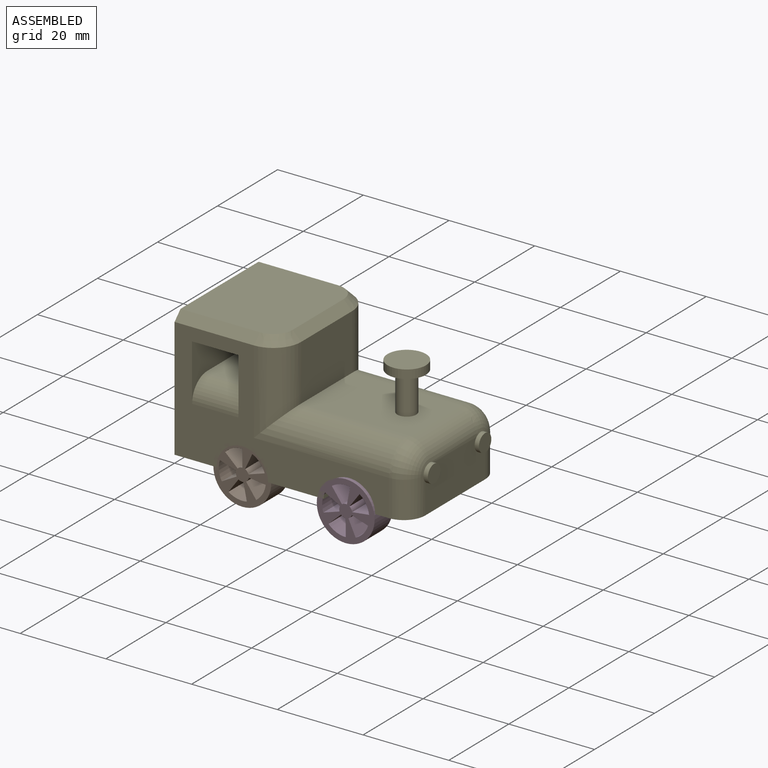
[diagram: assembled view]
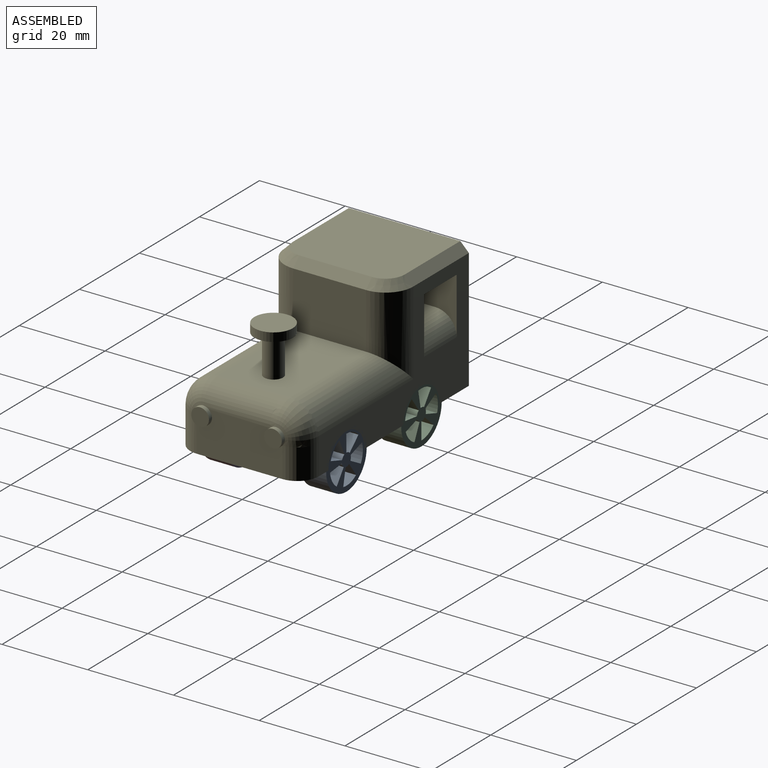
[diagram: assembled view, second angle]
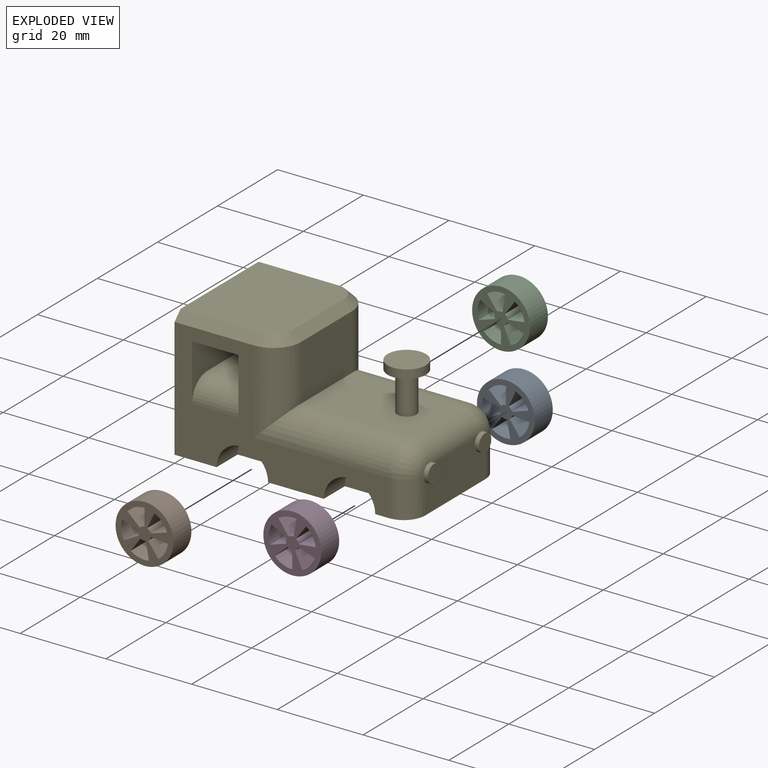
[diagram: exploded view]
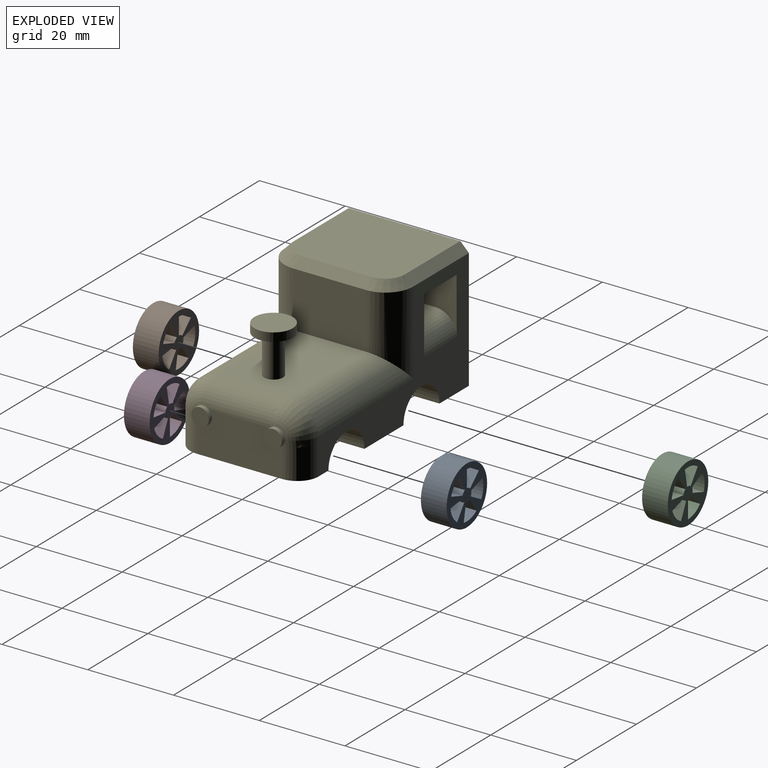
[diagram: exploded view, second angle]
ASSEMBLY  parts=5 mates=4
PART A: 23 faces, bbox 13.5x13.5x6 mm
  f0: plane 13.5x13.5mm, normal (0,0,1), area 85.7mm2, adj f2,f3,f4,f5,f6,f7,f8,f9
  f1: plane 13.5x13.5mm, normal (0,0,-1), area 85.7mm2, adj f2,f3,f4,f5,f6,f7,f8,f9
  f2: cylinder r=6.75mm len=13.5mm, axis (0,0,-1), area 254.5mm2, adj f0,f1
  f3: plane 6x2.93mm, normal (0.68,0.73,0), area 24mm2, adj f0,f1,f4,f6
  f4: cylinder r=1.5mm len=6mm, axis (0,0,1), area 7.4mm2, adj f0,f1,f3,f5
  f5: plane 6x4mm, normal (-1,0,0), area 24mm2, adj f0,f1,f4,f6
  f6: cylinder r=5.5mm len=6mm, axis (0,0,1), area 27.1mm2, adj f0,f1,f3,f5
  f7: plane 6x3.93mm, normal (-0.98,-0.19,0), area 24mm2, adj f0,f1,f8,f10
  f8: cylinder r=1.5mm len=6mm, axis (0,0,1), area 7.4mm2, adj f0,f1,f7,f9
  f9: plane 6x3.24mm, normal (0.81,-0.59,0), area 24mm2, adj f0,f1,f8,f10
  f10: cylinder r=5.5mm len=6mm, axis (0,0,1), area 27.1mm2, adj f0,f1,f7,f9
  f11: plane 6x3.5mm, normal (-0.48,0.87,0), area 24mm2, adj f0,f1,f12,f14
  f12: cylinder r=1.5mm len=6mm, axis (0,0,1), area 7.4mm2, adj f0,f1,f11,f13
  f13: plane 6x3.8mm, normal (-0.31,-0.95,0), area 24mm2, adj f0,f1,f12,f14
  f14: cylinder r=5.5mm len=6mm, axis (0,0,1), area 27.1mm2, adj f0,f1,f11,f13
  f15: plane 6x3.97mm, normal (-0.12,-0.99,0), area 24mm2, adj f0,f1,f16,f18
  f16: cylinder r=1.5mm len=6mm, axis (0,0,1), area 7.4mm2, adj f0,f1,f15,f17
  f17: plane 6x3.24mm, normal (0.81,0.59,0), area 24mm2, adj f0,f1,f16,f18
  f18: cylinder r=5.5mm len=6mm, axis (0,0,1), area 27.1mm2, adj f0,f1,f15,f17
  f19: plane 6x3.63mm, normal (0.91,-0.42,0), area 24mm2, adj f0,f1,f20,f22
  f20: cylinder r=1.5mm len=6mm, axis (0,0,1), area 7.4mm2, adj f0,f1,f19,f21
  f21: plane 6x3.8mm, normal (-0.31,0.95,0), area 24mm2, adj f0,f1,f20,f22
  f22: cylinder r=5.5mm len=6mm, axis (0,0,1), area 27.1mm2, adj f0,f1,f19,f21
PART B: same geometry as A
PART C: same geometry as A
PART D: same geometry as A
PART E: 46 faces, bbox 56x30x30 mm
  f0: cylinder r=2.21mm len=9mm, axis (0,0,-1), area 124.8mm2, adj f8,f44
  f1: plane 50x28mm, normal (0,-1,0), area 529.9mm2, adj f4,f6,f13,f15,f17,f18,f25,f26
  f2: plane 50.03x28mm, normal (0,1,0), area 529.9mm2, adj f4,f6,f9,f11,f19,f20,f21,f26
  f3: plane 26x23mm, normal (0,0,1), area 589.3mm2, adj f4,f21,f22,f23,f24,f25
  f4: plane 30x30mm, normal (-1,0,0), area 896mm2, adj f1,f2,f3,f6,f21,f25
  f5: plane 20x10mm, normal (1,0,0), area 177.5mm2, adj f6,f32,f34,f36,f40,f41
  f6: plane 55x30mm, normal (0,0,-1), area 1303.3mm2, adj f1,f2,f4,f5,f9,f10,f11,f12
  f7: plane 17x13mm, normal (1,0,0), area 221mm2, adj f8,f18,f20,f23
  f8: plane 25.03x17mm, normal (0,0,1), area 409.7mm2, adj f0,f7,f17,f19,f39,f40
  f9: cylinder r=6mm len=12mm, axis (0,1,0), area 131.9mm2, adj f2,f6,f10
  f10: plane 12x6mm, normal (0,1,0), area 56.5mm2, adj f6,f9
  f11: cylinder r=6mm len=12mm, axis (0,1,0), area 131.9mm2, adj f2,f6,f12
  f12: plane 12x6mm, normal (0,1,0), area 56.5mm2, adj f6,f11
  f13: cylinder r=6mm len=12mm, axis (0,-1,0), area 131.9mm2, adj f1,f6,f14
  f14: plane 12x6mm, normal (0,-1,0), area 56.5mm2, adj f6,f13
  f15: cylinder r=6mm len=12mm, axis (0,-1,0), area 131.9mm2, adj f1,f6,f16
  f16: plane 12x6mm, normal (0,-1,0), area 56.5mm2, adj f6,f15
  f17: cylinder r=6.5mm len=31.5mm, axis (-1,0,0), area 279.4mm2, adj f1,f8,f18,f42
  f18: cylinder r=6.5mm len=19.5mm, axis (0,0,1), area 156.8mm2, adj f1,f7,f17,f24
  f19: cylinder r=6.5mm len=31.53mm, axis (1,0,0), area 279.7mm2, adj f2,f8,f20,f38
  f20: cylinder r=6.5mm len=19.5mm, axis (0,0,-1), area 156.8mm2, adj f2,f7,f19,f22
  f21: plane 18.5x2mm, normal (0,0.71,0.71), area 52.3mm2, adj f2,f3,f4,f22
  f22: cone r=4.5mm half-angle=45deg, axis (0,0,-1), area 24.4mm2, adj f3,f20,f21,f23
  f23: plane 17x2mm, normal (0.71,0,0.71), area 48.1mm2, adj f3,f7,f22,f24
  f24: cone r=4.5mm half-angle=45deg, axis (0,0,-1), area 24.4mm2, adj f3,f18,f23,f25
  f25: plane 18.5x2mm, normal (0,-0.71,0.71), area 52.3mm2, adj f1,f3,f4,f24
  f26: plane 30x10.85mm, normal (0,0,-1), area 325.6mm2, adj f1,f2,f27,f29
  f27: plane 30x13.15mm, normal (-1,0,0), area 255.3mm2, adj f1,f2,f26,f28,f30,f31
  f28: plane 20x10.85mm, normal (0,0,1), area 217.1mm2, adj f27,f29,f30,f31
  f29: plane 30x13.15mm, normal (1,0,0), area 255.3mm2, adj f1,f2,f26,f28,f30,f31
  f30: cylinder r=5mm len=10.85mm, axis (-1,0,0), area 85.2mm2, adj f1,f27,f28,f29
  f31: cylinder r=5mm len=10.85mm, axis (1,0,0), area 85.2mm2, adj f2,f27,f28,f29
  f32: cylinder r=2.07mm len=4.14mm, axis (-1,0,0), area 13.2mm2, adj f5,f33,f40,f41,f42
  f33: plane 4.14x4.14mm, normal (1,0,0), area 13.5mm2, adj f32
  f34: cylinder r=2.07mm len=4.14mm, axis (-1,0,0), area 13mm2, adj f5,f35,f37,f38,f39
  f35: plane 4.14x4.14mm, normal (1,0,0), area 13.4mm2, adj f34
  f36: cylinder r=5mm len=7.08mm, axis (0,0,-1), area 55.6mm2, adj f2,f5,f6,f37
  f37: bspline ~5.15x5.14mm, area 10.6mm2, adj f2,f34,f36,f38
  f38: torus R=1.5mm, axis (1,0,0), area 56.2mm2, adj f19,f34,f37,f39
  f39: bspline ~5.14x5.13mm, area 10.6mm2, adj f8,f34,f38,f40
  f40: cylinder r=5mm len=15.58mm, axis (0,1,0), area 121.9mm2, adj f5,f8,f32,f39,f42
  f41: cylinder r=5mm len=8.5mm, axis (0,0,1), area 66.4mm2, adj f1,f5,f6,f32,f42
  f42: torus R=1.5mm, axis (1,0,0), area 56.2mm2, adj f17,f32,f40,f41
  f43: cylinder r=4.47mm len=8.94mm, axis (0,0,1), area 56.2mm2, adj f44,f45
  f44: plane 8.94x8.94mm, normal (0,0,-1), area 47.5mm2, adj f0,f43
  f45: plane 8.94x8.94mm, normal (0,0,1), area 62.8mm2, adj f43
PLACE A rot(axis=(1,0,0),90deg) t=(9.79,37.18,20.89)mm
PLACE B rot(axis=(1,0,0),90deg) t=(-15.21,13.18,20.89)mm
PLACE C rot(axis=(-1,0,0),90deg) t=(-15.21,31.18,20.89)mm
PLACE D rot(axis=(-1,0,0),90deg) t=(8.91,7.18,19.68)mm
PLACE E t=(-3.52,22.18,20.89)mm
MATE fastened C.f4 <-> E.f9  axis (0,1,0) through (-15.21,37.18,20.89)mm
MATE fastened D.f1 <-> E.f11  axis (0,-1,0) through (9.79,7.18,20.89)mm
MATE fastened B.f4 <-> E.f9  axis (0,-1,0) through (-15.21,7.18,20.89)mm
MATE fastened A.f4 <-> E.f11  axis (0,1,0) through (9.79,37.18,20.89)mm
